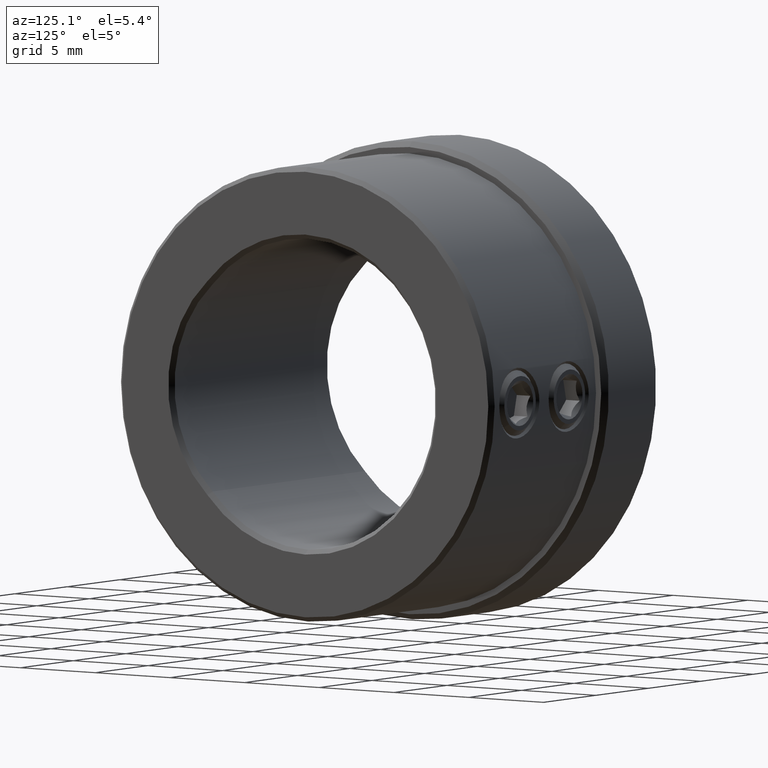
[diagram: clean part render]
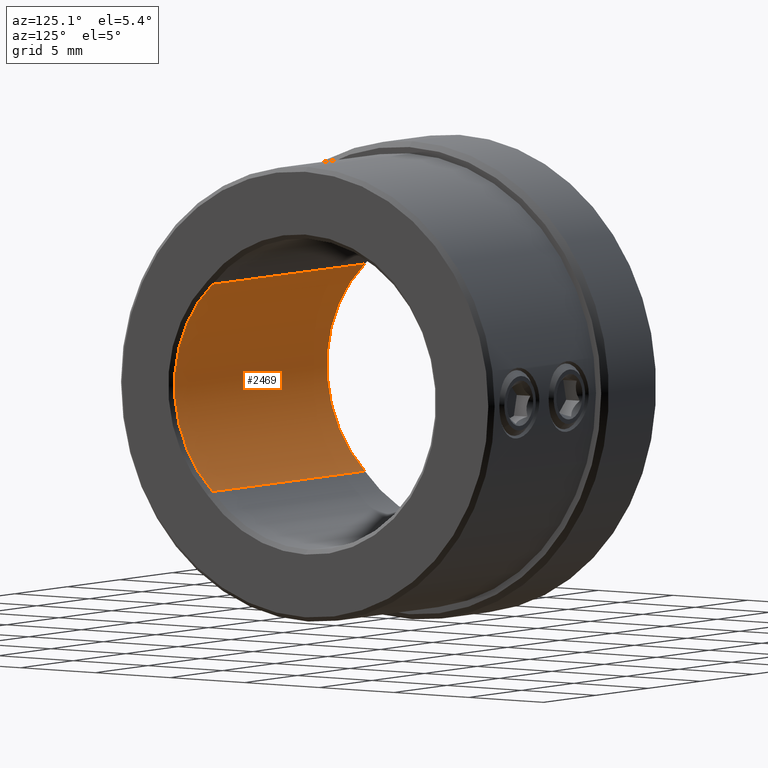
[diagram: same view with one face highlighted and labeled with its STEP entity id]
A machine part, auxiliary view. The second image highlights one B-rep face of the part: STEP entity #2469.
In plain terms, the highlighted cylindrical surface (partial cylindrical patch) has radius 7.65 mm, axis along (-1, -0, -0).
Its self-contained STEP definition (entity closure, byte-faithful):
#120 = ORIENTED_EDGE ( 'NONE', *, *, #401, .T. ) ;
#159 = CIRCLE ( 'NONE', #2981, 7.650000000000000355 ) ;
#317 = DIRECTION ( 'NONE',  ( 0.000000000000000000, 0.000000000000000000, -1.000000000000000000 ) ) ;
#401 = EDGE_CURVE ( 'NONE', #3289, #632, #159, .T. ) ;
#632 = VERTEX_POINT ( 'NONE', #1929 ) ;
#677 = CARTESIAN_POINT ( 'NONE',  ( 7.500000000000000000, -6.375157480314959990, -5.697356150108945805 ) ) ;
#996 = VERTEX_POINT ( 'NONE', #4578 ) ;
#1038 = DIRECTION ( 'NONE',  ( 0.000000000000000000, 0.000000000000000000, -1.000000000000000000 ) ) ;
#1086 = CARTESIAN_POINT ( 'NONE',  ( 14.74999999999998934, -6.375157480314959990, -5.697356150108945805 ) ) ;
#1316 = ORIENTED_EDGE ( 'NONE', *, *, #3949, .F. ) ;
#1552 = CYLINDRICAL_SURFACE ( 'NONE', #2036, 7.650000000000000355 ) ;
#1595 = CIRCLE ( 'NONE', #2710, 7.650000000000000355 ) ;
#1673 = DIRECTION ( 'NONE',  ( 0.000000000000000000, 0.000000000000000000, 1.000000000000000000 ) ) ;
#1674 = ORIENTED_EDGE ( 'NONE', *, *, #4253, .F. ) ;
#1769 = LINE ( 'NONE', #677, #2277 ) ;
#1812 = VECTOR ( 'NONE', #2269, 1000.000000000000000 ) ;
#1885 = LINE ( 'NONE', #3224, #1812 ) ;
#1929 = CARTESIAN_POINT ( 'NONE',  ( 0.2500000000000036637, -6.375157480314958214, 5.697356150108946693 ) ) ;
#2036 = AXIS2_PLACEMENT_3D ( 'NONE', #2264, #3678, #1673 ) ;
#2120 = CARTESIAN_POINT ( 'NONE',  ( 14.74999999999998934, -1.270000000000000018, 1.555301434917138581E-16 ) ) ;
#2229 = CARTESIAN_POINT ( 'NONE',  ( 0.2500000000000036637, -6.375157480314959990, -5.697356150108945805 ) ) ;
#2264 = CARTESIAN_POINT ( 'NONE',  ( 15.00000000000000000, -1.270000000000000018, 1.555301434917138581E-16 ) ) ;
#2269 = DIRECTION ( 'NONE',  ( -1.000000000000000000, -0.000000000000000000, -0.000000000000000000 ) ) ;
#2277 = VECTOR ( 'NONE', #2793, 1000.000000000000000 ) ;
#2469 = ADVANCED_FACE ( 'NONE', ( #3287 ), #1552, .F. ) ;
#2682 = EDGE_LOOP ( 'NONE', ( #1316, #120, #1674, #4591 ) ) ;
#2710 = AXIS2_PLACEMENT_3D ( 'NONE', #2120, #4172, #1038 ) ;
#2793 = DIRECTION ( 'NONE',  ( 1.000000000000000000, 0.000000000000000000, 0.000000000000000000 ) ) ;
#2801 = EDGE_CURVE ( 'NONE', #996, #3870, #1595, .T. ) ;
#2981 = AXIS2_PLACEMENT_3D ( 'NONE', #4563, #4205, #317 ) ;
#3224 = CARTESIAN_POINT ( 'NONE',  ( 7.500000000000000000, -6.375157480314958214, 5.697356150108946693 ) ) ;
#3287 = FACE_OUTER_BOUND ( 'NONE', #2682, .T. ) ;
#3289 = VERTEX_POINT ( 'NONE', #2229 ) ;
#3678 = DIRECTION ( 'NONE',  ( -1.000000000000000000, -0.000000000000000000, -0.000000000000000000 ) ) ;
#3870 = VERTEX_POINT ( 'NONE', #1086 ) ;
#3949 = EDGE_CURVE ( 'NONE', #3289, #3870, #1769, .T. ) ;
#4172 = DIRECTION ( 'NONE',  ( 1.000000000000000000, -0.000000000000000000, -0.000000000000000000 ) ) ;
#4205 = DIRECTION ( 'NONE',  ( -1.000000000000000000, 0.000000000000000000, 0.000000000000000000 ) ) ;
#4253 = EDGE_CURVE ( 'NONE', #996, #632, #1885, .T. ) ;
#4563 = CARTESIAN_POINT ( 'NONE',  ( 0.2500000000000036637, -1.270000000000000018, 1.555301434917138581E-16 ) ) ;
#4578 = CARTESIAN_POINT ( 'NONE',  ( 14.74999999999998934, -6.375157480314958214, 5.697356150108946693 ) ) ;
#4591 = ORIENTED_EDGE ( 'NONE', *, *, #2801, .T. ) ;